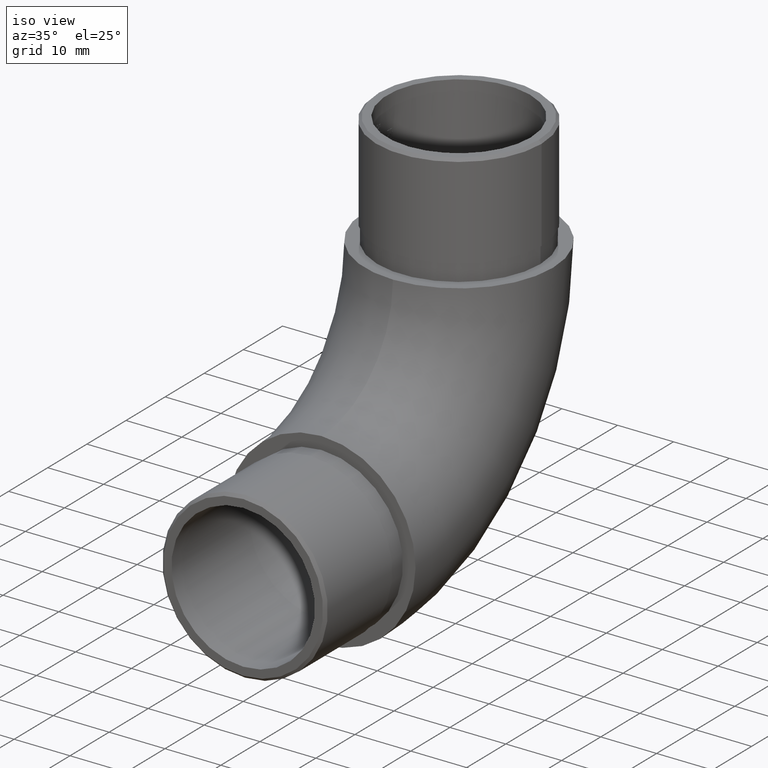
[diagram: clean part render]
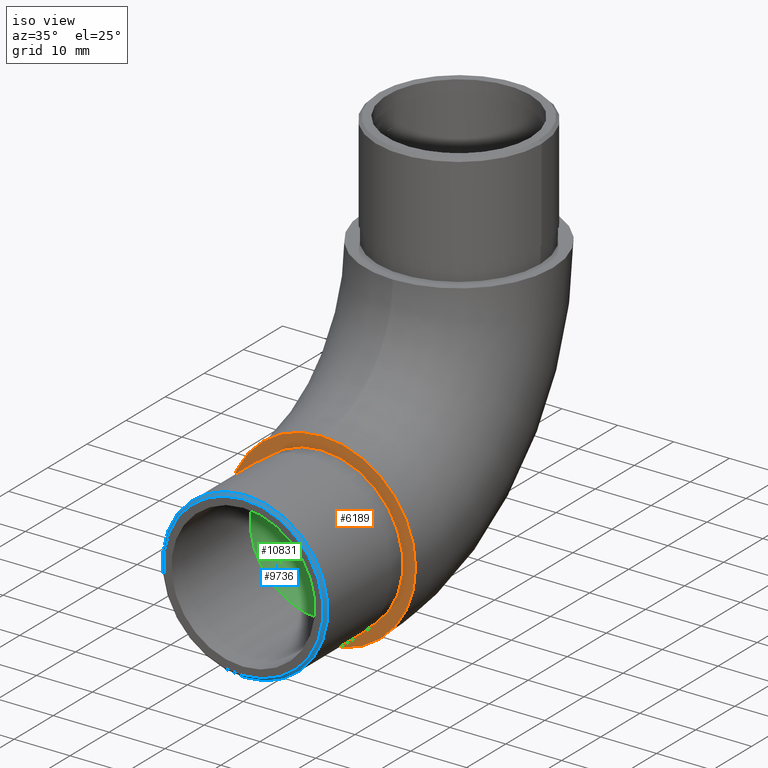
[diagram: same view with three faces highlighted in distinct colors, each labeled with its STEP entity id]
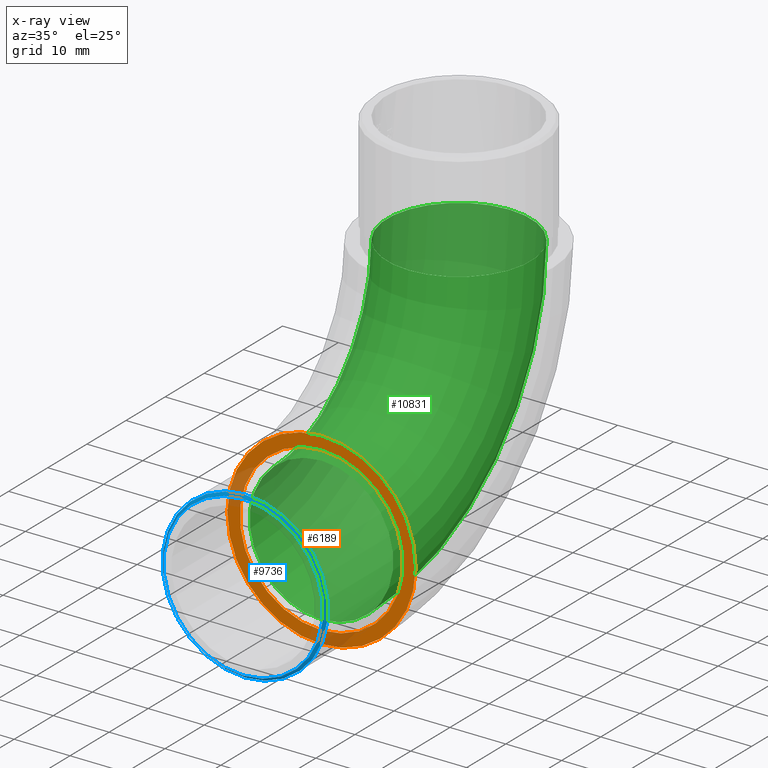
[diagram: x-ray of the same camera — body ghosted, the three highlighted faces saturated]
A machine part, iso view with three faces highlighted in distinct colors.
The next image is the same camera in x-ray (body ghosted, the three faces saturated) — at least one of them is partly hidden behind the body in this view.
Their STEP definitions:

[orange] entity #6189 — the highlighted planar face has unit normal (0, 1, 0).
#817 = CARTESIAN_POINT ( 'NONE',  ( 0.0000000000000000000, 0.0000000000000000000, 16.85000000000000100 ) ) ;
#828 = ORIENTED_EDGE ( 'NONE', *, *, #11448, .F. ) ;
#857 = CIRCLE ( 'NONE', #9103, 14.60000000000000100 ) ;
#988 = FACE_BOUND ( 'NONE', #2735, .T. ) ;
#1635 = CARTESIAN_POINT ( 'NONE',  ( 0.0000000000000000000, 0.0000000000000000000, 16.85000000000000100 ) ) ;
#1919 = DIRECTION ( 'NONE',  ( -0.0000000000000000000, -1.000000000000000000, -0.0000000000000000000 ) ) ;
#1950 = VERTEX_POINT ( 'NONE', #4390 ) ;
#2087 = AXIS2_PLACEMENT_3D ( 'NONE', #817, #3772, #5022 ) ;
#2735 = EDGE_LOOP ( 'NONE', ( #6474 ) ) ;
#3772 = DIRECTION ( 'NONE',  ( 0.0000000000000000000, 1.000000000000000000, 0.0000000000000000000 ) ) ;
#4390 = CARTESIAN_POINT ( 'NONE',  ( 0.0000000000000000000, 0.0000000000000000000, 31.45000000000000600 ) ) ;
#4965 = FACE_OUTER_BOUND ( 'NONE', #8260, .T. ) ;
#5022 = DIRECTION ( 'NONE',  ( 0.0000000000000000000, -0.0000000000000000000, 1.000000000000000000 ) ) ;
#5267 = CARTESIAN_POINT ( 'NONE',  ( 0.0000000000000000000, 0.0000000000000000000, 33.70000000000000300 ) ) ;
#5912 = EDGE_CURVE ( 'NONE', #1950, #1950, #857, .T. ) ;
#6189 = ADVANCED_FACE ( 'NONE', ( #4965, #988 ), #11597, .F. ) ;
#6474 = ORIENTED_EDGE ( 'NONE', *, *, #5912, .F. ) ;
#6913 = CARTESIAN_POINT ( 'NONE',  ( 0.0000000000000000000, 0.0000000000000000000, 16.85000000000000500 ) ) ;
#7519 = DIRECTION ( 'NONE',  ( 0.0000000000000000000, 0.0000000000000000000, 1.000000000000000000 ) ) ;
#7874 = DIRECTION ( 'NONE',  ( 0.0000000000000000000, 0.0000000000000000000, 1.000000000000000000 ) ) ;
#8205 = VERTEX_POINT ( 'NONE', #5267 ) ;
#8260 = EDGE_LOOP ( 'NONE', ( #828 ) ) ;
#8526 = DIRECTION ( 'NONE',  ( 0.0000000000000000000, 1.000000000000000000, 0.0000000000000000000 ) ) ;
#9103 = AXIS2_PLACEMENT_3D ( 'NONE', #6913, #1919, #7874 ) ;
#9605 = CIRCLE ( 'NONE', #11451, 16.85000000000000100 ) ;
#11448 = EDGE_CURVE ( 'NONE', #8205, #8205, #9605, .T. ) ;
#11451 = AXIS2_PLACEMENT_3D ( 'NONE', #1635, #8526, #7519 ) ;
#11597 = PLANE ( 'NONE',  #2087 ) ;

[blue] entity #9736 — the highlighted conical surface has half-angle 45 deg.
#825 = AXIS2_PLACEMENT_3D ( 'NONE', #5051, #2223, #10843 ) ;
#1810 = VERTEX_POINT ( 'NONE', #8088 ) ;
#2223 = DIRECTION ( 'NONE',  ( 0.0000000000000000000, 1.000000000000000000, 0.0000000000000000000 ) ) ;
#2636 = FACE_OUTER_BOUND ( 'NONE', #11383, .T. ) ;
#3352 = CIRCLE ( 'NONE', #7027, 14.30000000000002000 ) ;
#4592 = VERTEX_POINT ( 'NONE', #9153 ) ;
#4993 = DIRECTION ( 'NONE',  ( 0.0000000000000000000, 1.000000000000000000, 0.0000000000000000000 ) ) ;
#5051 = CARTESIAN_POINT ( 'NONE',  ( 0.0000000000000000000, -20.00000000000000000, 16.85000000000000500 ) ) ;
#5656 = EDGE_LOOP ( 'NONE', ( #12059 ) ) ;
#6454 = FACE_BOUND ( 'NONE', #5656, .T. ) ;
#6889 = ORIENTED_EDGE ( 'NONE', *, *, #8229, .F. ) ;
#7027 = AXIS2_PLACEMENT_3D ( 'NONE', #8728, #7671, #8613 ) ;
#7028 = CARTESIAN_POINT ( 'NONE',  ( 0.0000000000000000000, -19.50000000000001800, 16.85000000000000500 ) ) ;
#7671 = DIRECTION ( 'NONE',  ( 0.0000000000000000000, -1.000000000000000000, 0.0000000000000000000 ) ) ;
#8088 = CARTESIAN_POINT ( 'NONE',  ( 0.0000000000000000000, -20.00000000000000000, 2.549999999999982900 ) ) ;
#8229 = EDGE_CURVE ( 'NONE', #4592, #4592, #11352, .T. ) ;
#8613 = DIRECTION ( 'NONE',  ( 0.0000000000000000000, 0.0000000000000000000, -1.000000000000000000 ) ) ;
#8728 = CARTESIAN_POINT ( 'NONE',  ( 0.0000000000000000000, -20.00000000000000000, 16.85000000000000500 ) ) ;
#9153 = CARTESIAN_POINT ( 'NONE',  ( 0.0000000000000000000, -19.50000000000001800, 2.050000000000003400 ) ) ;
#9488 = CONICAL_SURFACE ( 'NONE', #825, 14.30000000000002000, 0.7853981633974447300 ) ;
#9623 = AXIS2_PLACEMENT_3D ( 'NONE', #7028, #4993, #11804 ) ;
#9736 = ADVANCED_FACE ( 'NONE', ( #2636, #6454 ), #9488, .T. ) ;
#10843 = DIRECTION ( 'NONE',  ( 0.0000000000000000000, 0.0000000000000000000, 1.000000000000000000 ) ) ;
#11352 = CIRCLE ( 'NONE', #9623, 14.80000000000000100 ) ;
#11383 = EDGE_LOOP ( 'NONE', ( #6889 ) ) ;
#11569 = EDGE_CURVE ( 'NONE', #1810, #1810, #3352, .T. ) ;
#11804 = DIRECTION ( 'NONE',  ( 0.0000000000000000000, 0.0000000000000000000, -1.000000000000000000 ) ) ;
#12059 = ORIENTED_EDGE ( 'NONE', *, *, #11569, .F. ) ;

[green] entity #10831 — the highlighted toroidal blend (fillet) surface has major radius 35.15 mm and minor (blend) radius 12.85 mm.
#615 = VERTEX_POINT ( 'NONE', #1452 ) ;
#1206 = TOROIDAL_SURFACE ( 'NONE', #10132, 35.14999999999999100, 12.85000000000000000 ) ;
#1326 = AXIS2_PLACEMENT_3D ( 'NONE', #6787, #6701, #5898 ) ;
#1452 = CARTESIAN_POINT ( 'NONE',  ( 0.0000000000000000000, -6.938893903907228400E-015, 29.70000000000000300 ) ) ;
#1978 = CARTESIAN_POINT ( 'NONE',  ( 0.0000000000000000000, -6.938893903907228400E-015, 52.00000000000000000 ) ) ;
#2255 = CARTESIAN_POINT ( 'NONE',  ( 0.0000000000000000000, 22.29999999999998600, 52.00000000000000000 ) ) ;
#2506 = DIRECTION ( 'NONE',  ( 0.0000000000000000000, -1.000000000000000000, 0.0000000000000000000 ) ) ;
#3584 = CARTESIAN_POINT ( 'NONE',  ( 0.0000000000000000000, 35.14999999999998400, 52.00000000000000000 ) ) ;
#3769 = CIRCLE ( 'NONE', #1326, 12.85000000000000000 ) ;
#3966 = DIRECTION ( 'NONE',  ( 0.0000000000000000000, 0.0000000000000000000, 1.000000000000000000 ) ) ;
#4628 = EDGE_LOOP ( 'NONE', ( #8422 ) ) ;
#4875 = VERTEX_POINT ( 'NONE', #2255 ) ;
#5009 = EDGE_CURVE ( 'NONE', #615, #615, #3769, .T. ) ;
#5898 = DIRECTION ( 'NONE',  ( 0.0000000000000000000, 0.0000000000000000000, 1.000000000000000000 ) ) ;
#6701 = DIRECTION ( 'NONE',  ( 0.0000000000000000000, 1.000000000000000000, 0.0000000000000000000 ) ) ;
#6787 = CARTESIAN_POINT ( 'NONE',  ( 0.0000000000000000000, -6.938893903907228400E-015, 16.85000000000000500 ) ) ;
#8143 = EDGE_LOOP ( 'NONE', ( #11574 ) ) ;
#8422 = ORIENTED_EDGE ( 'NONE', *, *, #12389, .T. ) ;
#8500 = DIRECTION ( 'NONE',  ( 0.0000000000000000000, 6.123233995736766000E-017, 1.000000000000000000 ) ) ;
#8731 = AXIS2_PLACEMENT_3D ( 'NONE', #3584, #8500, #2506 ) ;
#9292 = CIRCLE ( 'NONE', #8731, 12.85000000000000000 ) ;
#10132 = AXIS2_PLACEMENT_3D ( 'NONE', #1978, #12633, #3966 ) ;
#10831 = ADVANCED_FACE ( 'NONE', ( #11748, #10977 ), #1206, .F. ) ;
#10977 = FACE_OUTER_BOUND ( 'NONE', #8143, .T. ) ;
#11574 = ORIENTED_EDGE ( 'NONE', *, *, #5009, .F. ) ;
#11748 = FACE_OUTER_BOUND ( 'NONE', #4628, .T. ) ;
#12389 = EDGE_CURVE ( 'NONE', #4875, #4875, #9292, .T. ) ;
#12633 = DIRECTION ( 'NONE',  ( -1.000000000000000000, -0.0000000000000000000, -0.0000000000000000000 ) ) ;